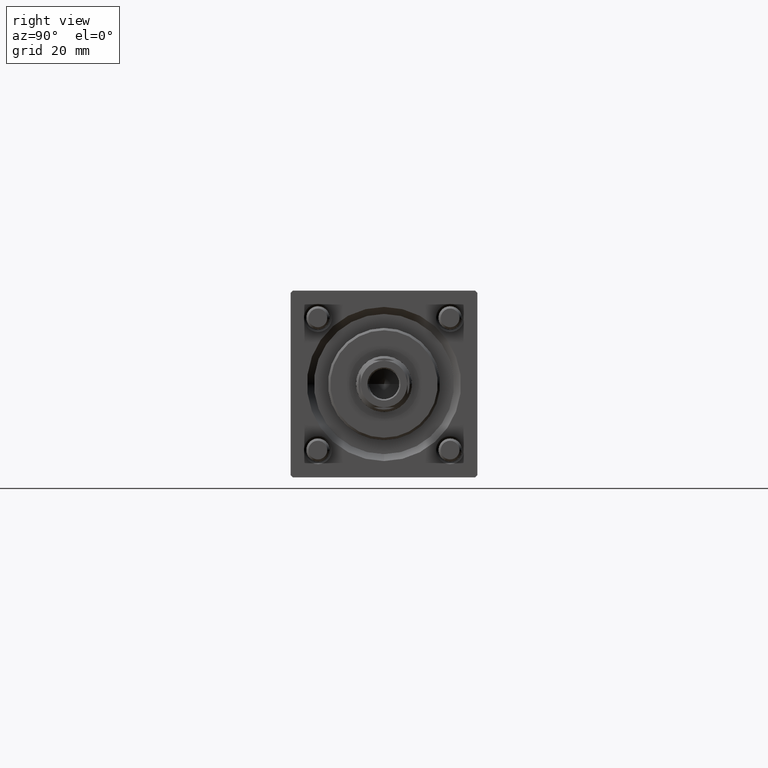
[diagram: clean part render]
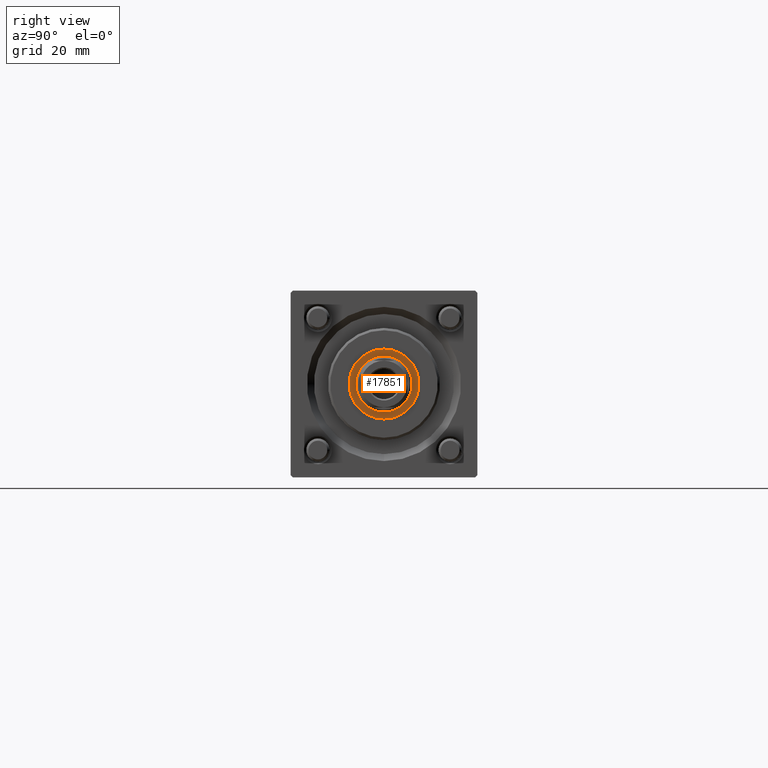
[diagram: same view with one face highlighted and labeled with its STEP entity id]
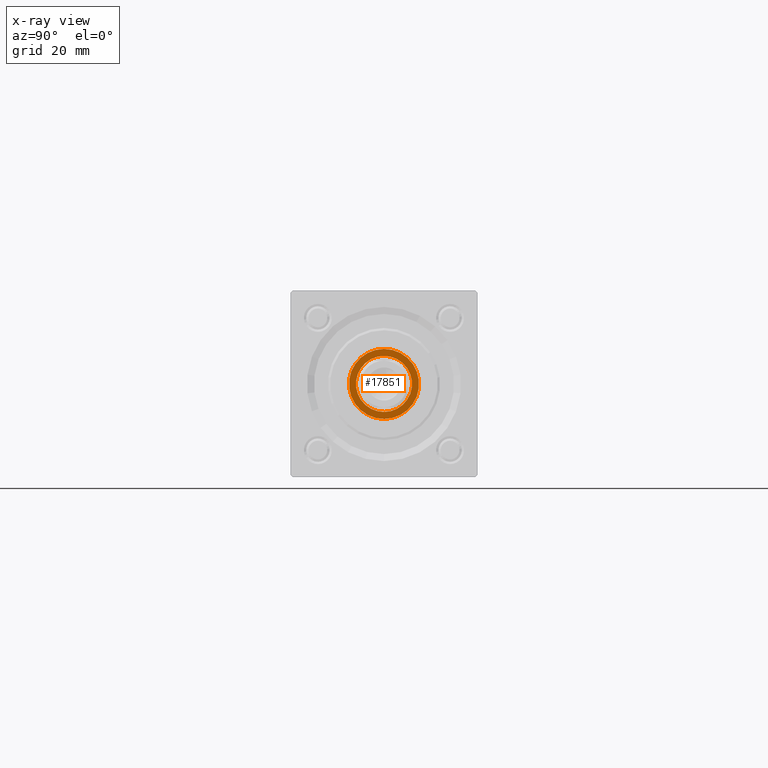
[diagram: x-ray of the same camera — body ghosted, the highlighted face saturated]
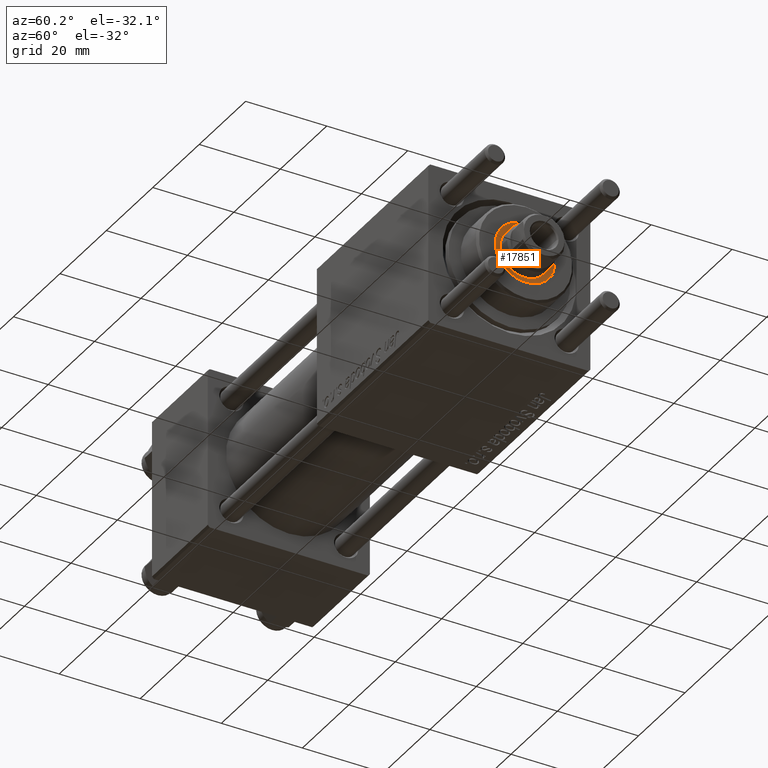
[diagram: same view with one face highlighted and labeled with its STEP entity id]
A machine part, right view. The second image highlights one B-rep face of the part: STEP entity #17851.
The next image is the same camera in x-ray: the body ghosted, the highlighted face saturated — about 0% of this face is hidden behind the body in this view.
A second angle (auxiliary view) of the same face is appended — the face is thin or edge-on in the first view.
In plain terms, the highlighted planar face has unit normal (1, 0, 0).
Its self-contained STEP definition (entity closure, byte-faithful):
#2117 = ORIENTED_EDGE ( 'NONE', *, *, #7777, .T. ) ;
#3406 = DIRECTION ( 'NONE',  ( 1.000000000000000000, 0.000000000000000000, 0.000000000000000000 ) ) ;
#4323 = CARTESIAN_POINT ( 'NONE',  ( 0.000000000000000000, 0.000000000000000000, 35.20000000000000284 ) ) ;
#7091 = DIRECTION ( 'NONE',  ( -0.000000000000000000, -0.000000000000000000, -1.000000000000000000 ) ) ;
#7777 = EDGE_CURVE ( 'NONE', #14476, #32613, #36726, .T. ) ;
#8290 = VERTEX_POINT ( 'NONE', #42293 ) ;
#9553 = EDGE_CURVE ( 'NONE', #8290, #34697, #39495, .T. ) ;
#10871 = CIRCLE ( 'NONE', #52142, 6.000000000000000888 ) ;
#11724 = AXIS2_PLACEMENT_3D ( 'NONE', #24904, #29778, #12811 ) ;
#12351 = CARTESIAN_POINT ( 'NONE',  ( 7.500000000000000888, 0.000000000000000000, 35.20000000000000284 ) ) ;
#12811 = DIRECTION ( 'NONE',  ( 1.000000000000000000, 0.000000000000000000, 0.000000000000000000 ) ) ;
#14476 = VERTEX_POINT ( 'NONE', #28375 ) ;
#14748 = AXIS2_PLACEMENT_3D ( 'NONE', #4323, #21834, #33639 ) ;
#15794 = ORIENTED_EDGE ( 'NONE', *, *, #42834, .T. ) ;
#17140 = DIRECTION ( 'NONE',  ( -0.000000000000000000, -0.000000000000000000, -1.000000000000000000 ) ) ;
#17851 = ADVANCED_FACE ( 'NONE', ( #21210, #56213 ), #38992, .T. ) ;
#21210 = FACE_OUTER_BOUND ( 'NONE', #36270, .T. ) ;
#21834 = DIRECTION ( 'NONE',  ( 0.000000000000000000, 0.000000000000000000, 1.000000000000000000 ) ) ;
#22227 = EDGE_LOOP ( 'NONE', ( #2117, #49219 ) ) ;
#24904 = CARTESIAN_POINT ( 'NONE',  ( 0.000000000000000000, 0.000000000000000000, 35.20000000000000284 ) ) ;
#27726 = CARTESIAN_POINT ( 'NONE',  ( -6.000000000000000888, 7.347880794884119736E-16, 35.20000000000000284 ) ) ;
#28375 = CARTESIAN_POINT ( 'NONE',  ( 6.000000000000000888, 0.000000000000000000, 35.20000000000000284 ) ) ;
#29257 = DIRECTION ( 'NONE',  ( 1.000000000000000000, 0.000000000000000000, -0.000000000000000000 ) ) ;
#29778 = DIRECTION ( 'NONE',  ( 0.000000000000000000, 0.000000000000000000, 1.000000000000000000 ) ) ;
#30953 = CIRCLE ( 'NONE', #11724, 7.500000000000000888 ) ;
#32613 = VERTEX_POINT ( 'NONE', #27726 ) ;
#33639 = DIRECTION ( 'NONE',  ( 1.000000000000000000, 0.000000000000000000, 0.000000000000000000 ) ) ;
#33854 = CARTESIAN_POINT ( 'NONE',  ( 0.000000000000000000, 0.000000000000000000, 35.20000000000000284 ) ) ;
#34697 = VERTEX_POINT ( 'NONE', #12351 ) ;
#36270 = EDGE_LOOP ( 'NONE', ( #15794, #48605 ) ) ;
#36726 = CIRCLE ( 'NONE', #54128, 6.000000000000000888 ) ;
#37815 = DIRECTION ( 'NONE',  ( 1.000000000000000000, 0.000000000000000000, 0.000000000000000000 ) ) ;
#38102 = CARTESIAN_POINT ( 'NONE',  ( 0.000000000000000000, 0.000000000000000000, 35.20000000000000284 ) ) ;
#38699 = CARTESIAN_POINT ( 'NONE',  ( 0.000000000000000000, 0.000000000000000000, 35.20000000000000284 ) ) ;
#38992 = PLANE ( 'NONE',  #54245 ) ;
#39495 = CIRCLE ( 'NONE', #14748, 7.500000000000000888 ) ;
#39696 = EDGE_CURVE ( 'NONE', #32613, #14476, #10871, .T. ) ;
#42293 = CARTESIAN_POINT ( 'NONE',  ( -7.500000000000000888, 9.184850993605149917E-16, 35.20000000000000284 ) ) ;
#42834 = EDGE_CURVE ( 'NONE', #34697, #8290, #30953, .T. ) ;
#48605 = ORIENTED_EDGE ( 'NONE', *, *, #9553, .T. ) ;
#49219 = ORIENTED_EDGE ( 'NONE', *, *, #39696, .T. ) ;
#52142 = AXIS2_PLACEMENT_3D ( 'NONE', #38102, #7091, #37815 ) ;
#54128 = AXIS2_PLACEMENT_3D ( 'NONE', #38699, #17140, #3406 ) ;
#54245 = AXIS2_PLACEMENT_3D ( 'NONE', #33854, #56487, #29257 ) ;
#56213 = FACE_BOUND ( 'NONE', #22227, .T. ) ;
#56487 = DIRECTION ( 'NONE',  ( 0.000000000000000000, 0.000000000000000000, 1.000000000000000000 ) ) ;